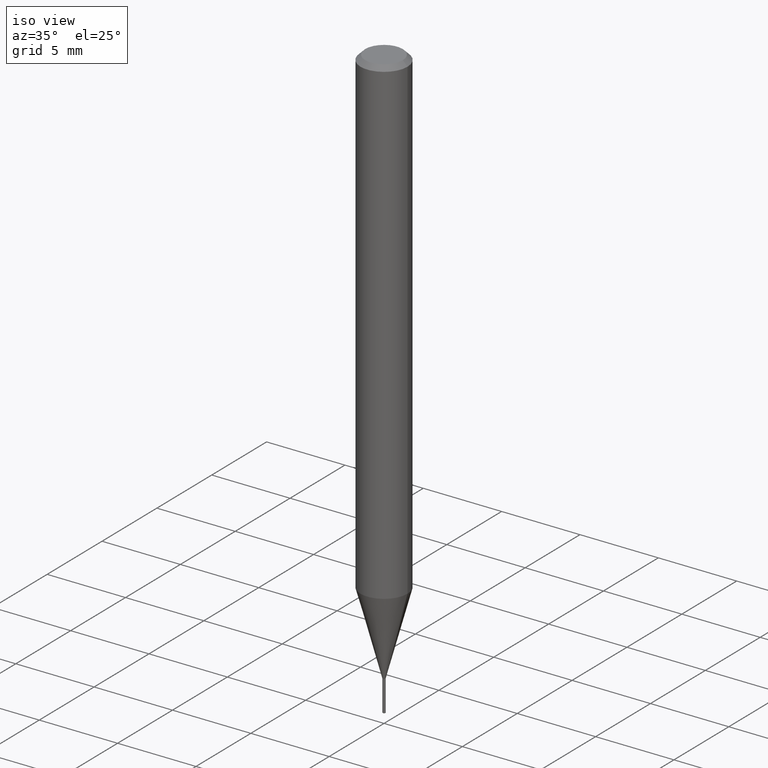
[diagram: clean part render]
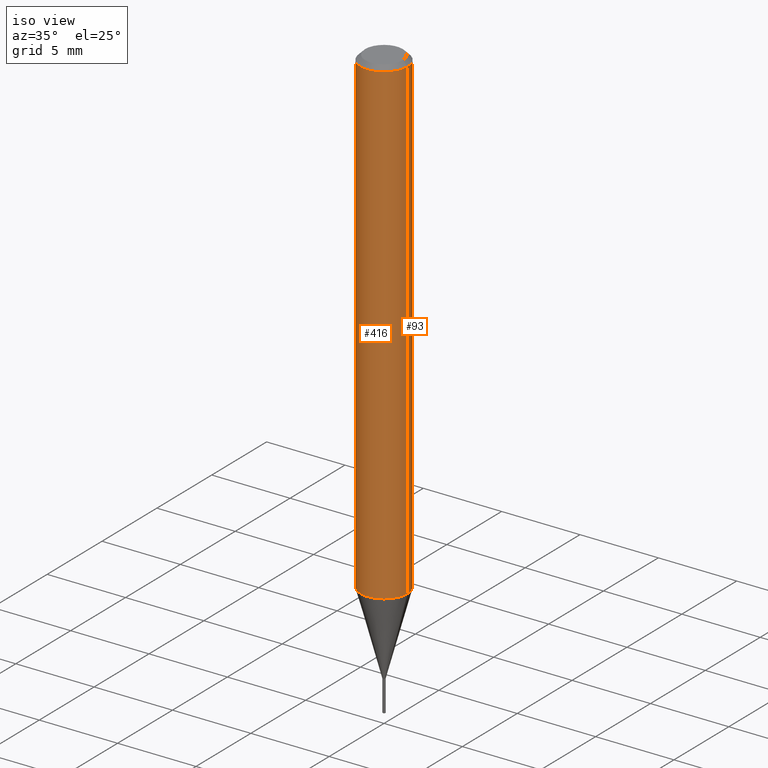
[diagram: same view with one multi-face feature highlighted, each face labeled with its STEP entity id]
A machine part, iso view. The highlighted faces form ONE feature: a constant-radius fillet chain: 2 tangent blend faces with common blend radius 1.4999 mm. The faces share edges in the B-rep.
Their STEP definitions:
[1] entity #93 (Cylinder):
#4 = CIRCLE ( 'NONE', #131, 0.05904999999999999832 ) ;
#16 = EDGE_CURVE ( 'NONE', #81, #423, #62, .T. ) ;
#25 = DIRECTION ( 'NONE',  ( 1.000000000000000000, -6.982962677686262766E-15, 0.000000000000000000 ) ) ;
#39 = DIRECTION ( 'NONE',  ( 1.000000000000000000, -6.982962677686266711E-15, 4.876176775795936353E-29 ) ) ;
#62 = LINE ( 'NONE', #65, #452 ) ;
#65 = CARTESIAN_POINT ( 'NONE',  ( 0.05905000000000007465, -4.123439461173745750E-16, 2.879382386107504074E-30 ) ) ;
#78 = CARTESIAN_POINT ( 'NONE',  ( -0.05905000000000015792, -3.799966196582654549E-15, -1.208524770018413408 ) ) ;
#81 = VERTEX_POINT ( 'NONE', #237 ) ;
#91 = CARTESIAN_POINT ( 'NONE',  ( 2.955409626582096145E-29, -4.219541682048994042E-15, -1.208524770018413408 ) ) ;
#93 = ADVANCED_FACE ( 'NONE', ( #240 ), #381, .T. ) ;
#95 = DIRECTION ( 'NONE',  ( -2.445468806185136597E-29, 3.491481338843145583E-15, 1.000000000000000000 ) ) ;
#96 = AXIS2_PLACEMENT_3D ( 'NONE', #91, #95, #25 ) ;
#109 = ORIENTED_EDGE ( 'NONE', *, *, #333, .F. ) ;
#131 = AXIS2_PLACEMENT_3D ( 'NONE', #282, #217, #178 ) ;
#154 = DIRECTION ( 'NONE',  ( -2.445468806185136877E-29, 3.491481338843145188E-15, 1.000000000000000000 ) ) ;
#158 = EDGE_CURVE ( 'NONE', #186, #440, #302, .T. ) ;
#162 = DIRECTION ( 'NONE',  ( -2.445468806185136597E-29, 3.491481338843145583E-15, 1.000000000000000000 ) ) ;
#178 = DIRECTION ( 'NONE',  ( 1.000000000000000000, -6.982962677686266711E-15, 0.000000000000000000 ) ) ;
#182 = ORIENTED_EDGE ( 'NONE', *, *, #385, .T. ) ;
#186 = VERTEX_POINT ( 'NONE', #78 ) ;
#217 = DIRECTION ( 'NONE',  ( -2.445468806185136597E-29, 3.491481338843145583E-15, 1.000000000000000000 ) ) ;
#218 = ORIENTED_EDGE ( 'NONE', *, *, #16, .F. ) ;
#237 = CARTESIAN_POINT ( 'NONE',  ( 0.05905000000000015792, -4.631885628166368963E-15, -1.208524770018413408 ) ) ;
#240 = FACE_OUTER_BOUND ( 'NONE', #398, .T. ) ;
#264 = CARTESIAN_POINT ( 'NONE',  ( 0.000000000000000000, 0.000000000000000000, 0.000000000000000000 ) ) ;
#265 = CIRCLE ( 'NONE', #96, 0.05905000000000015098 ) ;
#276 = ORIENTED_EDGE ( 'NONE', *, *, #158, .T. ) ;
#282 = CARTESIAN_POINT ( 'NONE',  ( 2.888098660104663328E-31, -4.123439461173779030E-17, -0.01181000000000006871 ) ) ;
#287 = CARTESIAN_POINT ( 'NONE',  ( 0.05904999999999999832, -4.535783407291118600E-16, -0.01181000000000006871 ) ) ;
#302 = LINE ( 'NONE', #455, #338 ) ;
#312 = AXIS2_PLACEMENT_3D ( 'NONE', #264, #162, #39 ) ;
#325 = DIRECTION ( 'NONE',  ( -2.445468806185136877E-29, 3.491481338843145188E-15, 1.000000000000000000 ) ) ;
#333 = EDGE_CURVE ( 'NONE', #423, #440, #4, .T. ) ;
#336 = CARTESIAN_POINT ( 'NONE',  ( -0.05904999999999999832, -1.710812552864025407E-15, -0.01181000000000006871 ) ) ;
#338 = VECTOR ( 'NONE', #154, 39.37007874015748143 ) ;
#381 = CYLINDRICAL_SURFACE ( 'NONE', #312, 0.05905000000000007465 ) ;
#385 = EDGE_CURVE ( 'NONE', #81, #186, #265, .T. ) ;
#398 = EDGE_LOOP ( 'NONE', ( #182, #276, #109, #218 ) ) ;
#423 = VERTEX_POINT ( 'NONE', #287 ) ;
#440 = VERTEX_POINT ( 'NONE', #336 ) ;
#452 = VECTOR ( 'NONE', #325, 39.37007874015748143 ) ;
#455 = CARTESIAN_POINT ( 'NONE',  ( -0.05905000000000007465, 4.195754854663396902E-16, -2.904631170795525395E-30 ) ) ;
[2] entity #416 (Cylinder):
#16 = EDGE_CURVE ( 'NONE', #81, #423, #62, .T. ) ;
#22 = ORIENTED_EDGE ( 'NONE', *, *, #16, .T. ) ;
#55 = ORIENTED_EDGE ( 'NONE', *, *, #158, .F. ) ;
#59 = CYLINDRICAL_SURFACE ( 'NONE', #339, 0.05905000000000007465 ) ;
#62 = LINE ( 'NONE', #65, #452 ) ;
#65 = CARTESIAN_POINT ( 'NONE',  ( 0.05905000000000007465, -4.123439461173745750E-16, 2.879382386107504074E-30 ) ) ;
#69 = CIRCLE ( 'NONE', #140, 0.05904999999999999832 ) ;
#78 = CARTESIAN_POINT ( 'NONE',  ( -0.05905000000000015792, -3.799966196582654549E-15, -1.208524770018413408 ) ) ;
#81 = VERTEX_POINT ( 'NONE', #237 ) ;
#140 = AXIS2_PLACEMENT_3D ( 'NONE', #366, #487, #185 ) ;
#147 = ORIENTED_EDGE ( 'NONE', *, *, #380, .T. ) ;
#154 = DIRECTION ( 'NONE',  ( -2.445468806185136877E-29, 3.491481338843145188E-15, 1.000000000000000000 ) ) ;
#158 = EDGE_CURVE ( 'NONE', #186, #440, #302, .T. ) ;
#172 = CIRCLE ( 'NONE', #443, 0.05905000000000015098 ) ;
#180 = CARTESIAN_POINT ( 'NONE',  ( 0.000000000000000000, 0.000000000000000000, 0.000000000000000000 ) ) ;
#185 = DIRECTION ( 'NONE',  ( 1.000000000000000000, -6.982962677686266711E-15, 0.000000000000000000 ) ) ;
#186 = VERTEX_POINT ( 'NONE', #78 ) ;
#201 = DIRECTION ( 'NONE',  ( 1.000000000000000000, -6.982962677686266711E-15, 4.876176775795936353E-29 ) ) ;
#224 = ORIENTED_EDGE ( 'NONE', *, *, #439, .F. ) ;
#237 = CARTESIAN_POINT ( 'NONE',  ( 0.05905000000000015792, -4.631885628166368963E-15, -1.208524770018413408 ) ) ;
#239 = DIRECTION ( 'NONE',  ( -2.445468806185136597E-29, 3.491481338843145583E-15, 1.000000000000000000 ) ) ;
#286 = DIRECTION ( 'NONE',  ( 1.000000000000000000, -6.982962677686262766E-15, 0.000000000000000000 ) ) ;
#287 = CARTESIAN_POINT ( 'NONE',  ( 0.05904999999999999832, -4.535783407291118600E-16, -0.01181000000000006871 ) ) ;
#302 = LINE ( 'NONE', #455, #338 ) ;
#325 = DIRECTION ( 'NONE',  ( -2.445468806185136877E-29, 3.491481338843145188E-15, 1.000000000000000000 ) ) ;
#336 = CARTESIAN_POINT ( 'NONE',  ( -0.05904999999999999832, -1.710812552864025407E-15, -0.01181000000000006871 ) ) ;
#338 = VECTOR ( 'NONE', #154, 39.37007874015748143 ) ;
#339 = AXIS2_PLACEMENT_3D ( 'NONE', #180, #239, #201 ) ;
#366 = CARTESIAN_POINT ( 'NONE',  ( 2.888098660104663328E-31, -4.123439461173779030E-17, -0.01181000000000006871 ) ) ;
#380 = EDGE_CURVE ( 'NONE', #186, #81, #172, .T. ) ;
#391 = DIRECTION ( 'NONE',  ( -2.445468806185136597E-29, 3.491481338843145583E-15, 1.000000000000000000 ) ) ;
#397 = FACE_OUTER_BOUND ( 'NONE', #484, .T. ) ;
#416 = ADVANCED_FACE ( 'NONE', ( #397 ), #59, .T. ) ;
#423 = VERTEX_POINT ( 'NONE', #287 ) ;
#430 = CARTESIAN_POINT ( 'NONE',  ( 2.955409626582096145E-29, -4.219541682048994042E-15, -1.208524770018413408 ) ) ;
#439 = EDGE_CURVE ( 'NONE', #440, #423, #69, .T. ) ;
#440 = VERTEX_POINT ( 'NONE', #336 ) ;
#443 = AXIS2_PLACEMENT_3D ( 'NONE', #430, #391, #286 ) ;
#452 = VECTOR ( 'NONE', #325, 39.37007874015748143 ) ;
#455 = CARTESIAN_POINT ( 'NONE',  ( -0.05905000000000007465, 4.195754854663396902E-16, -2.904631170795525395E-30 ) ) ;
#484 = EDGE_LOOP ( 'NONE', ( #55, #147, #22, #224 ) ) ;
#487 = DIRECTION ( 'NONE',  ( -2.445468806185136597E-29, 3.491481338843145583E-15, 1.000000000000000000 ) ) ;